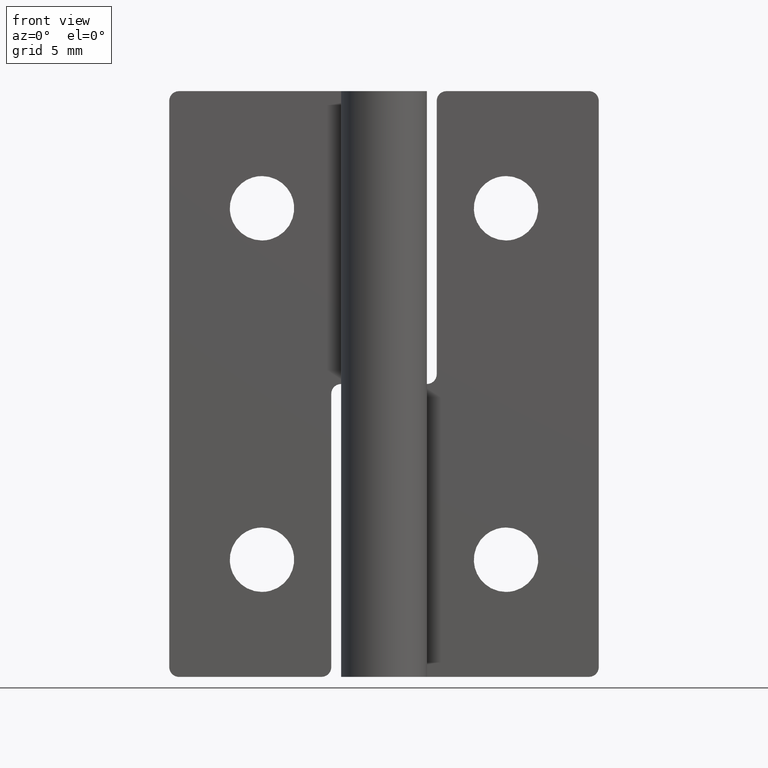
[diagram: clean part render]
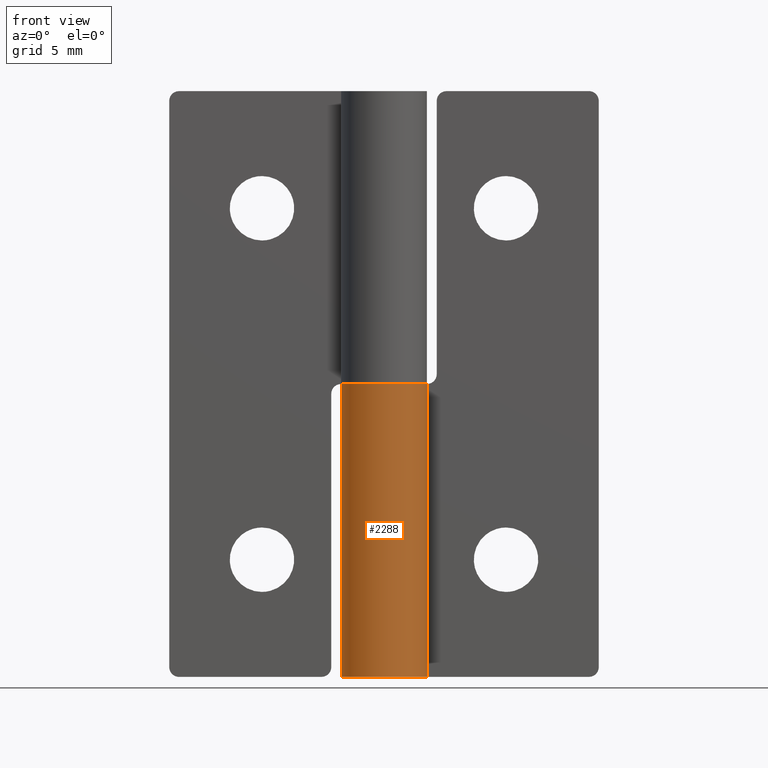
[diagram: same view with one face highlighted and labeled with its STEP entity id]
A machine part, front view. The second image highlights one B-rep face of the part: STEP entity #2288.
In plain terms, the highlighted face is a freeform B-spline surface patch.
Its self-contained STEP definition (entity closure, byte-faithful):
#1926=CARTESIAN_POINT('',(1.984314385259115,0.950000431818185,15.0));
#1927=VERTEX_POINT('',#1926);
#1928=CARTESIAN_POINT('',(0.0,2.200001000000000,15.0));
#1929=VERTEX_POINT('',#1928);
#1930=CARTESIAN_POINT('',(1.984314385259116,0.950000431818185,15.0));
#1931=CARTESIAN_POINT('',(2.698836959186665,-0.542459334040275,14.999999999999995));
#1932=CARTESIAN_POINT('',(1.463141923783001,-1.642930342671161,15.0));
#1933=CARTESIAN_POINT('',(0.227446888379338,-2.743401351302047,14.999999999999995));
#1934=CARTESIAN_POINT('',(-1.172604472957645,-1.861451893012743,15.0));
#1935=CARTESIAN_POINT('',(-2.572655834294630,-0.979502434723438,14.999999999999995));
#1936=CARTESIAN_POINT('',(-2.113669844852896,0.610249282638281,15.0));
#1937=CARTESIAN_POINT('',(-1.654683855411162,2.200001000000000,14.999999999999995));
#1938=CARTESIAN_POINT('',(0.0,2.200001000000000,15.0));
#1946=(BOUNDED_CURVE()B_SPLINE_CURVE(2,(#1930,#1931,#1932,#1933,#1934,#1935,#1936,#1937,#1938),.UNSPECIFIED.,.F.,.U.)B_SPLINE_CURVE_WITH_KNOTS((3,2,2,2,3),(0.0,0.250000000000000,0.500000000000000,0.750000000000000,1.0),.UNSPECIFIED.)CURVE()GEOMETRIC_REPRESENTATION_ITEM()RATIONAL_B_SPLINE_CURVE((1.0,0.799182679829321,1.0,0.799182679829321,1.0,0.799182679829321,1.0,0.799182679829321,1.0))REPRESENTATION_ITEM(''));
#1947=EDGE_CURVE('',#1927,#1929,#1946,.T.);
#2200=CARTESIAN_POINT('',(1.984314385259115,0.950000431818184,0.0));
#2201=VERTEX_POINT('',#2200);
#2207=CARTESIAN_POINT('',(0.0,2.200001000000000,0.0));
#2208=VERTEX_POINT('',#2207);
#2209=CARTESIAN_POINT('',(1.984314385259116,0.950000431818184,0.0));
#2210=CARTESIAN_POINT('',(2.698836959186664,-0.542459334040276,0.0));
#2211=CARTESIAN_POINT('',(1.463141923783001,-1.642930342671161,0.0));
#2212=CARTESIAN_POINT('',(0.227446888379338,-2.743401351302047,0.0));
#2213=CARTESIAN_POINT('',(-1.172604472957645,-1.861451893012743,0.0));
#2214=CARTESIAN_POINT('',(-2.572655834294632,-0.979502434723438,0.0));
#2215=CARTESIAN_POINT('',(-2.113669844852895,0.610249282638282,0.0));
#2216=CARTESIAN_POINT('',(-1.654683855411160,2.200001000000000,0.0));
#2217=CARTESIAN_POINT('',(0.0,2.200001000000000,0.0));
#2225=(BOUNDED_CURVE()B_SPLINE_CURVE(2,(#2209,#2210,#2211,#2212,#2213,#2214,#2215,#2216,#2217),.UNSPECIFIED.,.F.,.U.)B_SPLINE_CURVE_WITH_KNOTS((3,2,2,2,3),(0.0,0.250000000000000,0.500000000000000,0.750000000000000,1.0),.UNSPECIFIED.)CURVE()GEOMETRIC_REPRESENTATION_ITEM()RATIONAL_B_SPLINE_CURVE((1.0,0.799182679829321,1.0,0.799182679829321,1.0,0.799182679829321,1.0,0.799182679829321,1.0))REPRESENTATION_ITEM(''));
#2226=EDGE_CURVE('',#2201,#2208,#2225,.T.);
#2242=CARTESIAN_POINT('',(1.984314385259115,0.950000431818184,0.0));
#2243=CARTESIAN_POINT('',(1.984314385259115,0.950000431818185,15.0));
#2244=QUASI_UNIFORM_CURVE('',1,(#2242,#2243),.UNSPECIFIED.,.F.,.U.);
#2245=EDGE_CURVE('',#2201,#1927,#2244,.T.);
#2256=CARTESIAN_POINT('',(1.951424720002920,1.015847410865687,-0.375000000000000));
#2257=CARTESIAN_POINT('',(1.951424720002920,1.015847410865687,15.384375000000000));
#2258=CARTESIAN_POINT('',(3.176468289851414,-1.337439391574221,-0.375000000000001));
#2259=CARTESIAN_POINT('',(3.176468289851414,-1.337439391574221,15.384375000000002));
#2260=CARTESIAN_POINT('',(0.637095416184470,-2.105733561179508,-0.375000000000000));
#2261=CARTESIAN_POINT('',(0.637095416184470,-2.105733561179508,15.384375000000000));
#2262=CARTESIAN_POINT('',(-1.902277457482474,-2.874027730784795,-0.375000000000001));
#2263=CARTESIAN_POINT('',(-1.902277457482474,-2.874027730784795,15.384375000000002));
#2264=CARTESIAN_POINT('',(-2.187270974064530,-0.236326227947300,-0.375000000000000));
#2265=CARTESIAN_POINT('',(-2.187270974064530,-0.236326227947300,15.384375000000000));
#2266=CARTESIAN_POINT('',(-2.472264490646586,2.401375274890195,-0.375000000000001));
#2267=CARTESIAN_POINT('',(-2.472264490646586,2.401375274890195,15.384375000000002));
#2268=CARTESIAN_POINT('',(0.172610089060354,2.193219131130214,-0.375000000000000));
#2269=CARTESIAN_POINT('',(0.172610089060354,2.193219131130214,15.384375000000000));
#2277=(BOUNDED_SURFACE()B_SPLINE_SURFACE(1,2,((#2256,#2258,#2260,#2262,#2264,#2266,#2268),(#2257,#2259,#2261,#2263,#2265,#2267,#2269)),.UNSPECIFIED.,.F.,.F.,.U.)B_SPLINE_SURFACE_WITH_KNOTS((2,2),(3,2,2,3),(0.0,15.759375000000000),(0.0,4.134715988333134,8.269431976666267,12.404147964999400),.UNSPECIFIED.)GEOMETRIC_REPRESENTATION_ITEM()RATIONAL_B_SPLINE_SURFACE(((1.0,0.638320090924328,1.0,0.638320090924328,1.0,0.638320090924328,1.0),(1.0,0.638320090924328,1.0,0.638320090924328,1.0,0.638320090924328,1.0)))REPRESENTATION_ITEM('')SURFACE());
#2278=ORIENTED_EDGE('',*,*,#2245,.T.);
#2279=ORIENTED_EDGE('',*,*,#1947,.T.);
#2280=CARTESIAN_POINT('',(0.0,2.200001000000000,0.0));
#2281=CARTESIAN_POINT('',(0.0,2.200001000000000,15.0));
#2282=QUASI_UNIFORM_CURVE('',1,(#2280,#2281),.UNSPECIFIED.,.F.,.U.);
#2283=EDGE_CURVE('',#2208,#1929,#2282,.T.);
#2284=ORIENTED_EDGE('',*,*,#2283,.F.);
#2285=ORIENTED_EDGE('',*,*,#2226,.F.);
#2286=EDGE_LOOP('',(#2278,#2279,#2284,#2285));
#2287=FACE_OUTER_BOUND('',#2286,.T.);
#2288=ADVANCED_FACE('',(#2287),#2277,.T.);